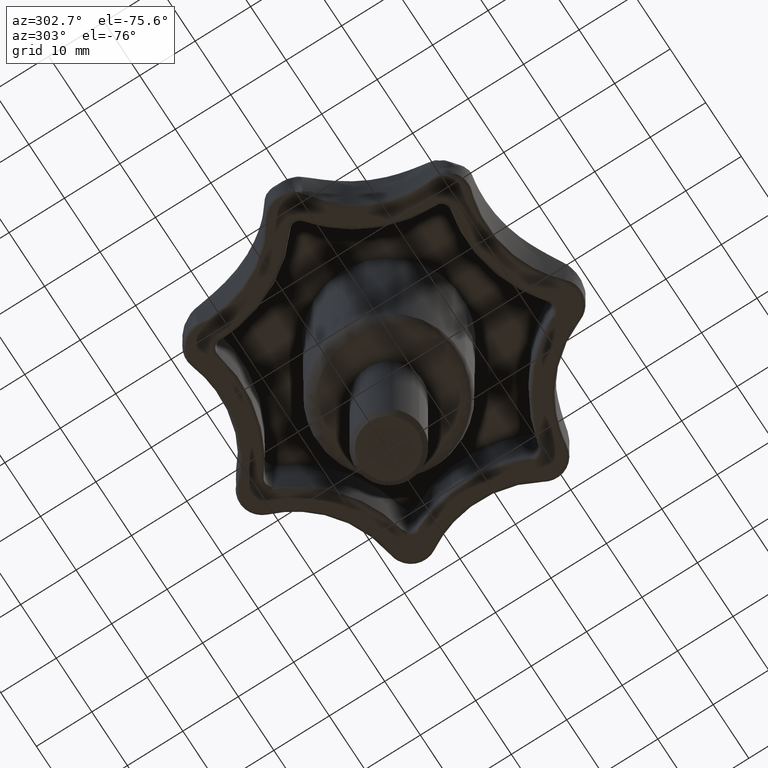
[diagram: clean part render]
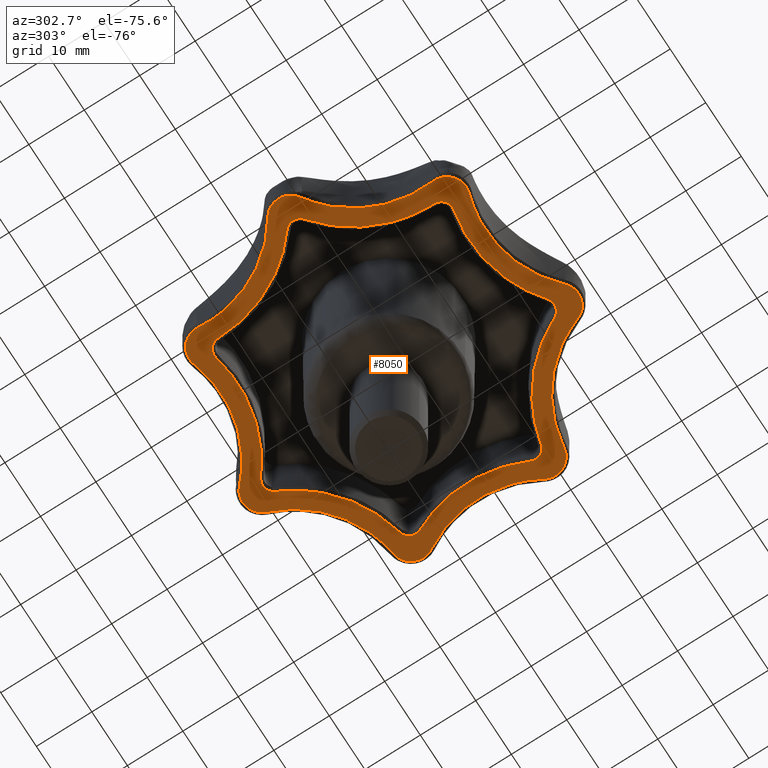
[diagram: same view with one face highlighted and labeled with its STEP entity id]
A machine part, auxiliary view. The second image highlights one B-rep face of the part: STEP entity #8050.
In plain terms, the highlighted face is a freeform B-spline surface patch.
Its self-contained STEP definition (entity closure, byte-faithful):
#2323=CARTESIAN_POINT('',(-26.157403018053451,-1.574010552981340,21.0));
#2324=VERTEX_POINT('',#2323);
#2340=CARTESIAN_POINT('',(-26.157402327696651,1.574010094163825,21.0));
#2341=VERTEX_POINT('',#2340);
#2342=CARTESIAN_POINT('',(-26.157402327696651,1.574010094163825,21.0));
#2343=CARTESIAN_POINT('',(-26.923508936665613,0.973445906584545,20.999999999999996));
#2344=CARTESIAN_POINT('',(-26.923508999999999,0.000000130124106,21.0));
#2345=CARTESIAN_POINT('',(-26.923509063334382,-0.973445646336332,20.999999999999996));
#2346=CARTESIAN_POINT('',(-26.157403018053451,-1.574010552981340,21.0));
#2354=(BOUNDED_CURVE()B_SPLINE_CURVE(2,(#2342,#2343,#2344,#2345,#2346),.UNSPECIFIED.,.F.,.U.)B_SPLINE_CURVE_WITH_KNOTS((3,2,3),(0.0,0.500000000000000,1.0),.UNSPECIFIED.)CURVE()GEOMETRIC_REPRESENTATION_ITEM()RATIONAL_B_SPLINE_CURVE((1.0,0.899151454122094,1.0,0.899151454122094,1.0))REPRESENTATION_ITEM(''));
#2355=EDGE_CURVE('',#2341,#2324,#2354,.T.);
#2407=CARTESIAN_POINT('',(-17.539484420840001,19.469301320397548,21.0));
#2408=VERTEX_POINT('',#2407);
#2438=CARTESIAN_POINT('',(-17.539484420840001,19.469301320397548,21.0));
#2439=CARTESIAN_POINT('',(-17.447166772819589,8.402112641054952,20.999999999999996));
#2440=CARTESIAN_POINT('',(-26.157402327696619,1.574010094163806,21.0));
#2448=(BOUNDED_CURVE()B_SPLINE_CURVE(2,(#2438,#2439,#2440),.UNSPECIFIED.,.F.,.U.)CURVE()GEOMETRIC_REPRESENTATION_ITEM()QUASI_UNIFORM_CURVE()RATIONAL_B_SPLINE_CURVE((1.0,0.897318377730782,1.0))REPRESENTATION_ITEM(''));
#2449=EDGE_CURVE('',#2408,#2341,#2448,.T.);
#2473=CARTESIAN_POINT('',(-17.539484761219200,-19.469302626357798,21.0));
#2474=VERTEX_POINT('',#2473);
#2490=CARTESIAN_POINT('',(-26.157403018053468,-1.574010552981349,21.0));
#2491=CARTESIAN_POINT('',(-17.447166617366683,-8.402113214654637,21.0));
#2492=CARTESIAN_POINT('',(-17.539484761219221,-19.469302626357798,21.0));
#2500=(BOUNDED_CURVE()B_SPLINE_CURVE(2,(#2490,#2491,#2492),.UNSPECIFIED.,.F.,.U.)CURVE()GEOMETRIC_REPRESENTATION_ITEM()QUASI_UNIFORM_CURVE()RATIONAL_B_SPLINE_CURVE((1.0,0.897318366098023,1.0))REPRESENTATION_ITEM(''));
#2501=EDGE_CURVE('',#2324,#2474,#2500,.T.);
#2543=CARTESIAN_POINT('',(-15.078263307801050,21.432059607665899,21.0));
#2544=VERTEX_POINT('',#2543);
#2576=CARTESIAN_POINT('',(-15.078263307801050,21.432059607665899,21.0));
#2577=CARTESIAN_POINT('',(-16.025462997286720,21.656580541981814,21.000000000000007));
#2578=CARTESIAN_POINT('',(-16.786533630538688,21.049646943546801,21.0));
#2579=CARTESIAN_POINT('',(-17.547604263790650,20.442713345111791,21.000000000000007));
#2580=CARTESIAN_POINT('',(-17.539484420840001,19.469301320397548,21.0));
#2588=(BOUNDED_CURVE()B_SPLINE_CURVE(2,(#2576,#2577,#2578,#2579,#2580),.UNSPECIFIED.,.F.,.U.)B_SPLINE_CURVE_WITH_KNOTS((3,2,3),(0.0,0.500000000000000,1.0),.UNSPECIFIED.)CURVE()GEOMETRIC_REPRESENTATION_ITEM()RATIONAL_B_SPLINE_CURVE((1.0,0.899151433949588,1.0,0.899151433949588,1.0))REPRESENTATION_ITEM(''));
#2589=EDGE_CURVE('',#2544,#2408,#2588,.T.);
#2613=CARTESIAN_POINT('',(-15.078263657540701,-21.432059851541698,21.0));
#2614=VERTEX_POINT('',#2613);
#2630=CARTESIAN_POINT('',(-17.539484761219200,-19.469302626357798,21.0));
#2631=CARTESIAN_POINT('',(-17.547603633330400,-20.442714131826776,21.000000000000004));
#2632=CARTESIAN_POINT('',(-16.786533273947260,-21.049647227918971,21.0));
#2633=CARTESIAN_POINT('',(-16.025462914564120,-21.656580324011163,21.000000000000004));
#2634=CARTESIAN_POINT('',(-15.078263657540701,-21.432059851541709,21.0));
#2642=(BOUNDED_CURVE()B_SPLINE_CURVE(2,(#2630,#2631,#2632,#2633,#2634),.UNSPECIFIED.,.F.,.U.)B_SPLINE_CURVE_WITH_KNOTS((3,2,3),(0.0,0.500000000000000,1.0),.UNSPECIFIED.)CURVE()GEOMETRIC_REPRESENTATION_ITEM()RATIONAL_B_SPLINE_CURVE((1.0,0.899151527238184,1.0,0.899151527238184,1.0))REPRESENTATION_ITEM(''));
#2643=EDGE_CURVE('',#2474,#2614,#2642,.T.);
#2681=CARTESIAN_POINT('',(4.286022625796695,25.851831997338799,21.0));
#2682=VERTEX_POINT('',#2681);
#2712=CARTESIAN_POINT('',(4.286022625796695,25.851831997338799,21.0));
#2713=CARTESIAN_POINT('',(-4.309094552370043,18.879375169351459,21.0));
#2714=CARTESIAN_POINT('',(-15.078263307801061,21.432059607665920,21.0));
#2722=(BOUNDED_CURVE()B_SPLINE_CURVE(2,(#2712,#2713,#2714),.UNSPECIFIED.,.F.,.U.)CURVE()GEOMETRIC_REPRESENTATION_ITEM()QUASI_UNIFORM_CURVE()RATIONAL_B_SPLINE_CURVE((1.0,0.897318373654609,1.0))REPRESENTATION_ITEM(''));
#2723=EDGE_CURVE('',#2682,#2544,#2722,.T.);
#2747=CARTESIAN_POINT('',(4.286023105516870,-25.851831775733050,21.0));
#2748=VERTEX_POINT('',#2747);
#2762=CARTESIAN_POINT('',(-15.078263657540701,-21.432059851541698,21.0));
#2763=CARTESIAN_POINT('',(-4.309094602859652,-18.879374980849985,21.0));
#2764=CARTESIAN_POINT('',(4.286023105516875,-25.851831775733039,21.0));
#2772=(BOUNDED_CURVE()B_SPLINE_CURVE(2,(#2762,#2763,#2764),.UNSPECIFIED.,.F.,.U.)CURVE()GEOMETRIC_REPRESENTATION_ITEM()QUASI_UNIFORM_CURVE()RATIONAL_B_SPLINE_CURVE((1.0,0.897318367480120,1.0))REPRESENTATION_ITEM(''));
#2773=EDGE_CURVE('',#2614,#2748,#2772,.T.);
#2809=CARTESIAN_POINT('',(7.355115617414200,25.151331913332200,21.0));
#2810=VERTEX_POINT('',#2809);
#2842=CARTESIAN_POINT('',(7.355115617414200,25.151331913332200,21.0));
#2843=CARTESIAN_POINT('',(6.940083378447511,26.031868804803345,21.000000000000007));
#2844=CARTESIAN_POINT('',(5.991043759222901,26.248480849171369,21.0));
#2845=CARTESIAN_POINT('',(5.042004139998292,26.465092893539392,21.000000000000007));
#2846=CARTESIAN_POINT('',(4.286022625796689,25.851831997338810,21.0));
#2854=(BOUNDED_CURVE()B_SPLINE_CURVE(2,(#2842,#2843,#2844,#2845,#2846),.UNSPECIFIED.,.F.,.U.)B_SPLINE_CURVE_WITH_KNOTS((3,2,3),(0.0,0.500000000000000,1.0),.UNSPECIFIED.)CURVE()GEOMETRIC_REPRESENTATION_ITEM()RATIONAL_B_SPLINE_CURVE((1.0,0.899151427142208,1.0,0.899151427142208,1.0))REPRESENTATION_ITEM(''));
#2855=EDGE_CURVE('',#2810,#2682,#2854,.T.);
#2879=CARTESIAN_POINT('',(7.355115494641760,-25.151331493176301,21.0));
#2880=VERTEX_POINT('',#2879);
#2894=CARTESIAN_POINT('',(4.286023105516870,-25.851831775733050,21.0));
#2895=CARTESIAN_POINT('',(5.042004415088052,-26.465092970702255,21.0));
#2896=CARTESIAN_POINT('',(5.991044032521255,-26.248480786792801,21.0));
#2897=CARTESIAN_POINT('',(6.940083649954458,-26.031868602883346,21.0));
#2898=CARTESIAN_POINT('',(7.355115494641773,-25.151331493176311,21.0));
#2906=(BOUNDED_CURVE()B_SPLINE_CURVE(2,(#2894,#2895,#2896,#2897,#2898),.UNSPECIFIED.,.F.,.U.)B_SPLINE_CURVE_WITH_KNOTS((3,2,3),(0.0,0.500000000000000,1.0),.UNSPECIFIED.)CURVE()GEOMETRIC_REPRESENTATION_ITEM()RATIONAL_B_SPLINE_CURVE((1.0,0.899151421957991,1.0,0.899151421957991,1.0))REPRESENTATION_ITEM(''));
#2907=EDGE_CURVE('',#2748,#2880,#2906,.T.);
#2945=CARTESIAN_POINT('',(22.884067854601749,12.767405261591600,21.0));
#2946=VERTEX_POINT('',#2945);
#2976=CARTESIAN_POINT('',(22.884067854601749,12.767405261591600,21.0));
#2977=CARTESIAN_POINT('',(12.073813396620176,15.140083502244961,20.999999999999996));
#2978=CARTESIAN_POINT('',(7.355115617414206,25.151331913332200,21.0));
#2986=(BOUNDED_CURVE()B_SPLINE_CURVE(2,(#2976,#2977,#2978),.UNSPECIFIED.,.F.,.U.)CURVE()GEOMETRIC_REPRESENTATION_ITEM()QUASI_UNIFORM_CURVE()RATIONAL_B_SPLINE_CURVE((1.0,0.897318366550591,1.0))REPRESENTATION_ITEM(''));
#2987=EDGE_CURVE('',#2946,#2810,#2986,.T.);
#3011=CARTESIAN_POINT('',(22.884067904477199,-12.767405546818720,21.0));
#3012=VERTEX_POINT('',#3011);
#3026=CARTESIAN_POINT('',(7.355115494641760,-25.151331493176301,21.0));
#3027=CARTESIAN_POINT('',(12.073813592098743,-15.140083465601020,21.0));
#3028=CARTESIAN_POINT('',(22.884067904477199,-12.767405546818701,21.0));
#3036=(BOUNDED_CURVE()B_SPLINE_CURVE(2,(#3026,#3027,#3028),.UNSPECIFIED.,.F.,.U.)CURVE()GEOMETRIC_REPRESENTATION_ITEM()QUASI_UNIFORM_CURVE()RATIONAL_B_SPLINE_CURVE((1.0,0.897318369886883,1.0))REPRESENTATION_ITEM(''));
#3037=EDGE_CURVE('',#2880,#3012,#3036,.T.);
#3073=CARTESIAN_POINT('',(24.249942524534148,9.931137334033870,21.0));
#3074=VERTEX_POINT('',#3073);
#3106=CARTESIAN_POINT('',(24.249942524534148,9.931137334033870,21.0));
#3107=CARTESIAN_POINT('',(24.679606091650310,10.804628133674855,21.0));
#3108=CARTESIAN_POINT('',(24.257243687666261,11.681672578195879,21.0));
#3109=CARTESIAN_POINT('',(23.834881283682215,12.558717022716900,21.0));
#3110=CARTESIAN_POINT('',(22.884067854601749,12.767405261591581,21.0));
#3118=(BOUNDED_CURVE()B_SPLINE_CURVE(2,(#3106,#3107,#3108,#3109,#3110),.UNSPECIFIED.,.F.,.U.)B_SPLINE_CURVE_WITH_KNOTS((3,2,3),(0.0,0.500000000000000,1.0),.UNSPECIFIED.)CURVE()GEOMETRIC_REPRESENTATION_ITEM()RATIONAL_B_SPLINE_CURVE((1.0,0.899151428837696,1.0,0.899151428837696,1.0))REPRESENTATION_ITEM(''));
#3119=EDGE_CURVE('',#3074,#2946,#3118,.T.);
#3143=CARTESIAN_POINT('',(24.249942420260449,-9.931137559765110,21.0));
#3144=VERTEX_POINT('',#3143);
#3158=CARTESIAN_POINT('',(22.884067904477199,-12.767405546818720,21.0));
#3159=CARTESIAN_POINT('',(23.834881622613214,-12.558717847693778,20.999999999999996));
#3160=CARTESIAN_POINT('',(24.257243892186001,-11.681673153506219,21.0));
#3161=CARTESIAN_POINT('',(24.679606161758780,-10.804628459318664,20.999999999999996));
#3162=CARTESIAN_POINT('',(24.249942420260460,-9.931137559765109,21.0));
#3170=(BOUNDED_CURVE()B_SPLINE_CURVE(2,(#3158,#3159,#3160,#3161,#3162),.UNSPECIFIED.,.F.,.U.)B_SPLINE_CURVE_WITH_KNOTS((3,2,3),(0.0,0.500000000000000,1.0),.UNSPECIFIED.)CURVE()GEOMETRIC_REPRESENTATION_ITEM()RATIONAL_B_SPLINE_CURVE((1.0,0.899151399360571,1.0,0.899151399360571,1.0))REPRESENTATION_ITEM(''));
#3171=EDGE_CURVE('',#3012,#3144,#3170,.T.);
#3210=CARTESIAN_POINT('',(24.249942420260449,-9.931137559765110,21.0));
#3211=CARTESIAN_POINT('',(19.364893809706178,-0.000000087219917,21.000000000000004));
#3212=CARTESIAN_POINT('',(24.249942524534170,9.931137334033856,21.0));
#3220=(BOUNDED_CURVE()B_SPLINE_CURVE(2,(#3210,#3211,#3212),.UNSPECIFIED.,.F.,.U.)CURVE()GEOMETRIC_REPRESENTATION_ITEM()QUASI_UNIFORM_CURVE()RATIONAL_B_SPLINE_CURVE((1.0,0.897318375152060,1.0))REPRESENTATION_ITEM(''));
#3221=EDGE_CURVE('',#3144,#3074,#3220,.T.);
#3259=CARTESIAN_POINT('',(-29.408063266782051,-2.934159942804250,21.0));
#3260=VERTEX_POINT('',#3259);
#3276=CARTESIAN_POINT('',(-20.629646609310701,-21.162731165094751,21.0));
#3277=VERTEX_POINT('',#3276);
#3278=CARTESIAN_POINT('',(-20.629646609310701,-21.162731165094751,21.0));
#3279=CARTESIAN_POINT('',(-19.488159813581092,-9.385003333714939,21.0));
#3280=CARTESIAN_POINT('',(-29.408063266782051,-2.934159942804250,21.0));
#3288=(BOUNDED_CURVE()B_SPLINE_CURVE(2,(#3278,#3279,#3280),.UNSPECIFIED.,.F.,.U.)CURVE()GEOMETRIC_REPRESENTATION_ITEM()QUASI_UNIFORM_CURVE()RATIONAL_B_SPLINE_CURVE((1.0,0.854911404075926,1.0))REPRESENTATION_ITEM(''));
#3289=EDGE_CURVE('',#3277,#3260,#3288,.T.);
#3345=CARTESIAN_POINT('',(-16.041609558878950,-24.821568261235001,21.0));
#3346=VERTEX_POINT('',#3345);
#3378=CARTESIAN_POINT('',(-16.041609558878950,-24.821568261235001,21.0));
#3379=CARTESIAN_POINT('',(-17.843537272645790,-25.420742688549431,21.000000000000004));
#3380=CARTESIAN_POINT('',(-19.328184304843742,-24.236776189963368,21.0));
#3381=CARTESIAN_POINT('',(-20.812831337041686,-23.052809691377306,21.000000000000004));
#3382=CARTESIAN_POINT('',(-20.629646609310701,-21.162731165094751,21.0));
#3390=(BOUNDED_CURVE()B_SPLINE_CURVE(2,(#3378,#3379,#3380,#3381,#3382),.UNSPECIFIED.,.F.,.U.)B_SPLINE_CURVE_WITH_KNOTS((3,2,3),(0.0,0.500000000000000,1.0),.UNSPECIFIED.)CURVE()GEOMETRIC_REPRESENTATION_ITEM()RATIONAL_B_SPLINE_CURVE((1.0,0.878965568445601,1.0,0.878965568445601,1.0))REPRESENTATION_ITEM(''));
#3391=EDGE_CURVE('',#3346,#3277,#3390,.T.);
#3421=CARTESIAN_POINT('',(-29.408063843881749,2.934159567520355,21.0));
#3422=VERTEX_POINT('',#3421);
#3436=CARTESIAN_POINT('',(-29.408063266782051,-2.934159942804247,21.0));
#3437=CARTESIAN_POINT('',(-30.999999813255791,-1.898934969869953,21.0));
#3438=CARTESIAN_POINT('',(-30.999999999999979,-0.000000344195463,21.0));
#3439=CARTESIAN_POINT('',(-31.000000186744174,1.898934281479027,21.0));
#3440=CARTESIAN_POINT('',(-29.408063843881749,2.934159567520351,21.0));
#3448=(BOUNDED_CURVE()B_SPLINE_CURVE(2,(#3436,#3437,#3438,#3439,#3440),.UNSPECIFIED.,.F.,.U.)B_SPLINE_CURVE_WITH_KNOTS((3,2,3),(0.0,0.500000000000000,1.0),.UNSPECIFIED.)CURVE()GEOMETRIC_REPRESENTATION_ITEM()RATIONAL_B_SPLINE_CURVE((1.0,0.878965589715865,1.0,0.878965589715865,1.0))REPRESENTATION_ITEM(''));
#3449=EDGE_CURVE('',#3260,#3422,#3448,.T.);
#3487=CARTESIAN_POINT('',(3.683314885250545,-29.323653461692651,21.0));
#3488=VERTEX_POINT('',#3487);
#3518=CARTESIAN_POINT('',(3.683314885250545,-29.323653461692651,21.0));
#3519=CARTESIAN_POINT('',(-4.813178321628887,-21.087909458031163,20.999999999999996));
#3520=CARTESIAN_POINT('',(-16.041609558878950,-24.821568261234990,21.0));
#3528=(BOUNDED_CURVE()B_SPLINE_CURVE(2,(#3518,#3519,#3520),.UNSPECIFIED.,.F.,.U.)CURVE()GEOMETRIC_REPRESENTATION_ITEM()QUASI_UNIFORM_CURVE()RATIONAL_B_SPLINE_CURVE((1.0,0.854911394928556,1.0))REPRESENTATION_ITEM(''));
#3529=EDGE_CURVE('',#3488,#3346,#3528,.T.);
#3553=CARTESIAN_POINT('',(-20.629646682474700,21.162731162500201,21.0));
#3554=VERTEX_POINT('',#3553);
#3568=CARTESIAN_POINT('',(-29.408063843881749,2.934159567520355,21.0));
#3569=CARTESIAN_POINT('',(-19.488159230723365,9.385002609067817,21.000000000000004));
#3570=CARTESIAN_POINT('',(-20.629646682474689,21.162731162500190,21.0));
#3578=(BOUNDED_CURVE()B_SPLINE_CURVE(2,(#3568,#3569,#3570),.UNSPECIFIED.,.F.,.U.)CURVE()GEOMETRIC_REPRESENTATION_ITEM()QUASI_UNIFORM_CURVE()RATIONAL_B_SPLINE_CURVE((1.0,0.854911388871302,1.0))REPRESENTATION_ITEM(''));
#3579=EDGE_CURVE('',#3422,#3554,#3578,.T.);
#3621=CARTESIAN_POINT('',(9.404503869758679,-28.017829908542300,21.0));
#3622=VERTEX_POINT('',#3621);
#3654=CARTESIAN_POINT('',(9.404503869758679,-28.017829908542300,21.0));
#3655=CARTESIAN_POINT('',(8.749473749709154,-29.800213233809053,21.000000000000007));
#3656=CARTESIAN_POINT('',(6.898148790746258,-30.222765801759749,21.0));
#3657=CARTESIAN_POINT('',(5.046823831783362,-30.645318369710438,21.000000000000007));
#3658=CARTESIAN_POINT('',(3.683314885250547,-29.323653461692651,21.0));
#3666=(BOUNDED_CURVE()B_SPLINE_CURVE(2,(#3654,#3655,#3656,#3657,#3658),.UNSPECIFIED.,.F.,.U.)B_SPLINE_CURVE_WITH_KNOTS((3,2,3),(0.0,0.500000000000000,1.0),.UNSPECIFIED.)CURVE()GEOMETRIC_REPRESENTATION_ITEM()RATIONAL_B_SPLINE_CURVE((1.0,0.878965532513778,1.0,0.878965532513778,1.0))REPRESENTATION_ITEM(''));
#3667=EDGE_CURVE('',#3622,#3488,#3666,.T.);
#3697=CARTESIAN_POINT('',(-16.041609047583300,24.821568626576251,21.0));
#3698=VERTEX_POINT('',#3697);
#3712=CARTESIAN_POINT('',(-20.629646682474700,21.162731162500201,21.0));
#3713=CARTESIAN_POINT('',(-20.812831346463597,23.052809813762526,20.999999999999993));
#3714=CARTESIAN_POINT('',(-19.328184158494690,24.236776306672830,21.0));
#3715=CARTESIAN_POINT('',(-17.843536970525783,25.420742799583145,20.999999999999993));
#3716=CARTESIAN_POINT('',(-16.041609047583290,24.821568626576290,21.0));
#3724=(BOUNDED_CURVE()B_SPLINE_CURVE(2,(#3712,#3713,#3714,#3715,#3716),.UNSPECIFIED.,.F.,.U.)B_SPLINE_CURVE_WITH_KNOTS((3,2,3),(0.0,0.500000000000000,1.0),.UNSPECIFIED.)CURVE()GEOMETRIC_REPRESENTATION_ITEM()RATIONAL_B_SPLINE_CURVE((1.0,0.878965555998079,1.0,0.878965555998079,1.0))REPRESENTATION_ITEM(''));
#3725=EDGE_CURVE('',#3554,#3698,#3724,.T.);
#3763=CARTESIAN_POINT('',(25.222665218277950,-15.403267398902249,21.0));
#3764=VERTEX_POINT('',#3763);
#3794=CARTESIAN_POINT('',(25.222665218277950,-15.403267398902249,21.0));
#3795=CARTESIAN_POINT('',(13.486224277289901,-16.911190594990110,21.000000000000004));
#3796=CARTESIAN_POINT('',(9.404503869758663,-28.017829908542300,21.0));
#3804=(BOUNDED_CURVE()B_SPLINE_CURVE(2,(#3794,#3795,#3796),.UNSPECIFIED.,.F.,.U.)CURVE()GEOMETRIC_REPRESENTATION_ITEM()QUASI_UNIFORM_CURVE()RATIONAL_B_SPLINE_CURVE((1.0,0.854911393106063,1.0))REPRESENTATION_ITEM(''));
#3805=EDGE_CURVE('',#3764,#3622,#3804,.T.);
#3829=CARTESIAN_POINT('',(3.683315148571670,29.323653624289101,21.0));
#3830=VERTEX_POINT('',#3829);
#3844=CARTESIAN_POINT('',(-16.041609047583300,24.821568626576251,21.0));
#3845=CARTESIAN_POINT('',(-4.813177943721822,21.087909568915101,21.000000000000004));
#3846=CARTESIAN_POINT('',(3.683315148571644,29.323653624289111,21.0));
#3854=(BOUNDED_CURVE()B_SPLINE_CURVE(2,(#3844,#3845,#3846),.UNSPECIFIED.,.F.,.U.)CURVE()GEOMETRIC_REPRESENTATION_ITEM()QUASI_UNIFORM_CURVE()RATIONAL_B_SPLINE_CURVE((1.0,0.854911395828524,1.0))REPRESENTATION_ITEM(''));
#3855=EDGE_CURVE('',#3698,#3830,#3854,.T.);
#3897=CARTESIAN_POINT('',(27.768833851972548,-10.116093909634960,21.0));
#3898=VERTEX_POINT('',#3897);
#3930=CARTESIAN_POINT('',(27.768833851972548,-10.116093909634960,21.0));
#3931=CARTESIAN_POINT('',(28.753952003886660,-11.739514951218021,21.000000000000004));
#3932=CARTESIAN_POINT('',(27.930035012093530,-13.450396139997601,21.0));
#3933=CARTESIAN_POINT('',(27.106118020300382,-15.161277328777190,21.000000000000004));
#3934=CARTESIAN_POINT('',(25.222665218277950,-15.403267398902260,21.0));
#3942=(BOUNDED_CURVE()B_SPLINE_CURVE(2,(#3930,#3931,#3932,#3933,#3934),.UNSPECIFIED.,.F.,.U.)B_SPLINE_CURVE_WITH_KNOTS((3,2,3),(0.0,0.500000000000000,1.0),.UNSPECIFIED.)CURVE()GEOMETRIC_REPRESENTATION_ITEM()RATIONAL_B_SPLINE_CURVE((1.0,0.878965563692183,1.0,0.878965563692183,1.0))REPRESENTATION_ITEM(''));
#3943=EDGE_CURVE('',#3898,#3764,#3942,.T.);
#3973=CARTESIAN_POINT('',(9.404504182644500,28.017829846066249,21.0));
#3974=VERTEX_POINT('',#3973);
#3988=CARTESIAN_POINT('',(3.683315148571670,29.323653624289101,21.0));
#3989=CARTESIAN_POINT('',(5.046824514188058,30.645317276895000,21.000000000000004));
#3990=CARTESIAN_POINT('',(6.898148901007294,30.222764776593401,21.0));
#3991=CARTESIAN_POINT('',(8.749473287826529,29.800212276291798,21.000000000000004));
#3992=CARTESIAN_POINT('',(9.404504182644496,28.017829846066249,21.0));
#4000=(BOUNDED_CURVE()B_SPLINE_CURVE(2,(#3988,#3989,#3990,#3991,#3992),.UNSPECIFIED.,.F.,.U.)B_SPLINE_CURVE_WITH_KNOTS((3,2,3),(0.0,0.500000000000000,1.0),.UNSPECIFIED.)CURVE()GEOMETRIC_REPRESENTATION_ITEM()RATIONAL_B_SPLINE_CURVE((1.0,0.878965592815836,1.0,0.878965592815836,1.0))REPRESENTATION_ITEM(''));
#4001=EDGE_CURVE('',#3830,#3974,#4000,.T.);
#4039=CARTESIAN_POINT('',(27.768833750444649,10.116093635224381,21.0));
#4040=VERTEX_POINT('',#4039);
#4070=CARTESIAN_POINT('',(27.768833750444649,10.116093635224381,21.0));
#4071=CARTESIAN_POINT('',(21.630224711359958,-0.000000168009670,21.000000000000007));
#4072=CARTESIAN_POINT('',(27.768833851972580,-10.116093909634939,21.0));
#4080=(BOUNDED_CURVE()B_SPLINE_CURVE(2,(#4070,#4071,#4072),.UNSPECIFIED.,.F.,.U.)CURVE()GEOMETRIC_REPRESENTATION_ITEM()QUASI_UNIFORM_CURVE()RATIONAL_B_SPLINE_CURVE((1.0,0.854911396027728,1.0))REPRESENTATION_ITEM(''));
#4081=EDGE_CURVE('',#4040,#3898,#4080,.T.);
#4105=CARTESIAN_POINT('',(25.222665264978900,15.403267111573751,21.0));
#4106=VERTEX_POINT('',#4105);
#4122=CARTESIAN_POINT('',(9.404504182644500,28.017829846066249,21.0));
#4123=CARTESIAN_POINT('',(13.486224409885059,16.911190527213520,21.000000000000004));
#4124=CARTESIAN_POINT('',(25.222665264978890,15.403267111573760,21.0));
#4132=(BOUNDED_CURVE()B_SPLINE_CURVE(2,(#4122,#4123,#4124),.UNSPECIFIED.,.F.,.U.)CURVE()GEOMETRIC_REPRESENTATION_ITEM()QUASI_UNIFORM_CURVE()RATIONAL_B_SPLINE_CURVE((1.0,0.854911394218560,1.0))REPRESENTATION_ITEM(''));
#4133=EDGE_CURVE('',#3974,#4106,#4132,.T.);
#4176=CARTESIAN_POINT('',(25.222665264978900,15.403267111573751,21.0));
#4177=CARTESIAN_POINT('',(27.106118162406396,15.161277265152169,21.000000000000004));
#4178=CARTESIAN_POINT('',(27.930035092405959,13.450395973227099,21.0));
#4179=CARTESIAN_POINT('',(28.753952022405532,11.739514681302040,21.000000000000004));
#4180=CARTESIAN_POINT('',(27.768833750444660,10.116093635224370,21.0));
#4188=(BOUNDED_CURVE()B_SPLINE_CURVE(2,(#4176,#4177,#4178,#4179,#4180),.UNSPECIFIED.,.F.,.U.)B_SPLINE_CURVE_WITH_KNOTS((3,2,3),(0.0,0.500000000000000,1.0),.UNSPECIFIED.)CURVE()GEOMETRIC_REPRESENTATION_ITEM()RATIONAL_B_SPLINE_CURVE((1.0,0.878965556732010,1.0,0.878965556732010,1.0))REPRESENTATION_ITEM(''));
#4189=EDGE_CURVE('',#4106,#4040,#4188,.T.);
#8013=CARTESIAN_POINT('',(-33.960848106010928,-33.337280458344679,21.0));
#8014=CARTESIAN_POINT('',(31.237090354337148,-33.337280458344679,21.0));
#8015=CARTESIAN_POINT('',(-33.960848106010928,33.337281533267173,21.0));
#8016=CARTESIAN_POINT('',(31.237090354337148,33.337281533267173,21.0));
#8017=B_SPLINE_SURFACE_WITH_KNOTS('',1,1,((#8013,#8015),(#8014,#8016)),.UNSPECIFIED.,.F.,.F.,.U.,(2,2),(2,2),(0.0,65.197938460348070),(0.0,66.674561991611853),.UNSPECIFIED.);
#8018=ORIENTED_EDGE('',*,*,#3391,.T.);
#8019=ORIENTED_EDGE('',*,*,#3289,.T.);
#8020=ORIENTED_EDGE('',*,*,#3449,.T.);
#8021=ORIENTED_EDGE('',*,*,#3579,.T.);
#8022=ORIENTED_EDGE('',*,*,#3725,.T.);
#8023=ORIENTED_EDGE('',*,*,#3855,.T.);
#8024=ORIENTED_EDGE('',*,*,#4001,.T.);
#8025=ORIENTED_EDGE('',*,*,#4133,.T.);
#8026=ORIENTED_EDGE('',*,*,#4189,.T.);
#8027=ORIENTED_EDGE('',*,*,#4081,.T.);
#8028=ORIENTED_EDGE('',*,*,#3943,.T.);
#8029=ORIENTED_EDGE('',*,*,#3805,.T.);
#8030=ORIENTED_EDGE('',*,*,#3667,.T.);
#8031=ORIENTED_EDGE('',*,*,#3529,.T.);
#8032=EDGE_LOOP('',(#8018,#8019,#8020,#8021,#8022,#8023,#8024,#8025,#8026,#8027,#8028,#8029,#8030,#8031));
#8033=FACE_OUTER_BOUND('',#8032,.T.);
#8034=ORIENTED_EDGE('',*,*,#2449,.T.);
#8035=ORIENTED_EDGE('',*,*,#2355,.T.);
#8036=ORIENTED_EDGE('',*,*,#2501,.T.);
#8037=ORIENTED_EDGE('',*,*,#2643,.T.);
#8038=ORIENTED_EDGE('',*,*,#2773,.T.);
#8039=ORIENTED_EDGE('',*,*,#2907,.T.);
#8040=ORIENTED_EDGE('',*,*,#3037,.T.);
#8041=ORIENTED_EDGE('',*,*,#3171,.T.);
#8042=ORIENTED_EDGE('',*,*,#3221,.T.);
#8043=ORIENTED_EDGE('',*,*,#3119,.T.);
#8044=ORIENTED_EDGE('',*,*,#2987,.T.);
#8045=ORIENTED_EDGE('',*,*,#2855,.T.);
#8046=ORIENTED_EDGE('',*,*,#2723,.T.);
#8047=ORIENTED_EDGE('',*,*,#2589,.T.);
#8048=EDGE_LOOP('',(#8034,#8035,#8036,#8037,#8038,#8039,#8040,#8041,#8042,#8043,#8044,#8045,#8046,#8047));
#8049=FACE_BOUND('',#8048,.T.);
#8050=ADVANCED_FACE('',(#8033,#8049),#8017,.F.);